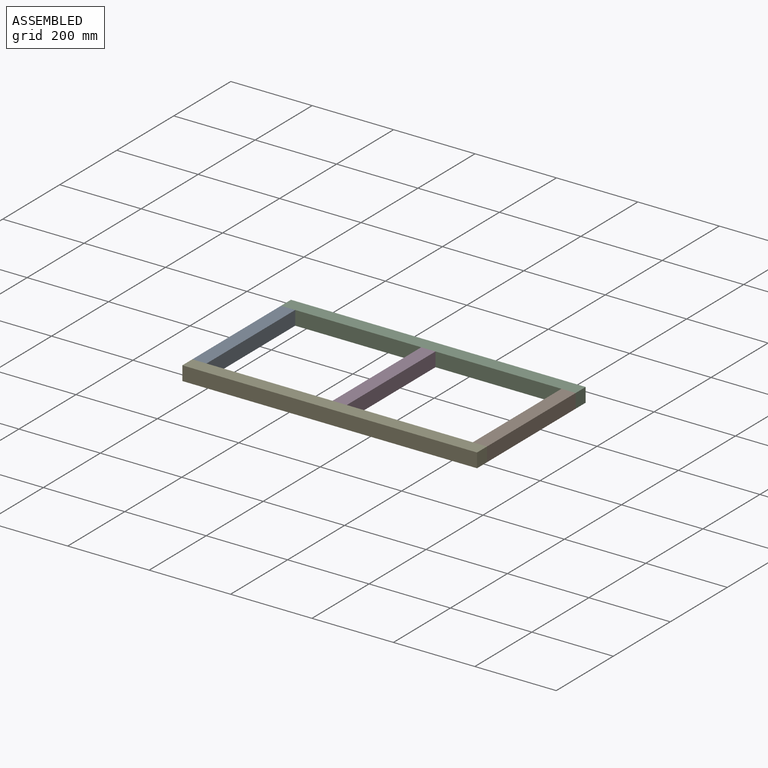
[diagram: assembled view]
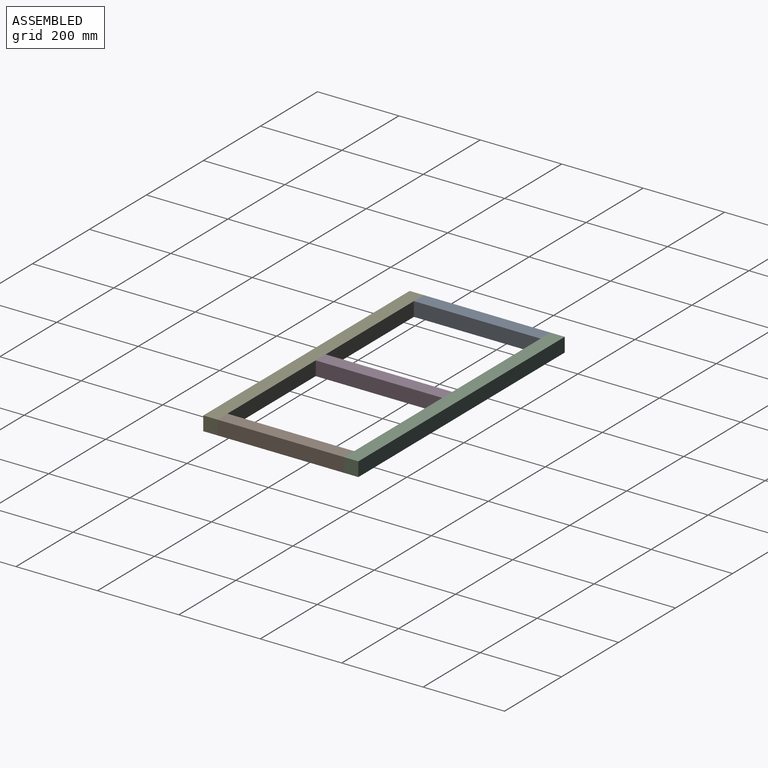
[diagram: assembled view, second angle]
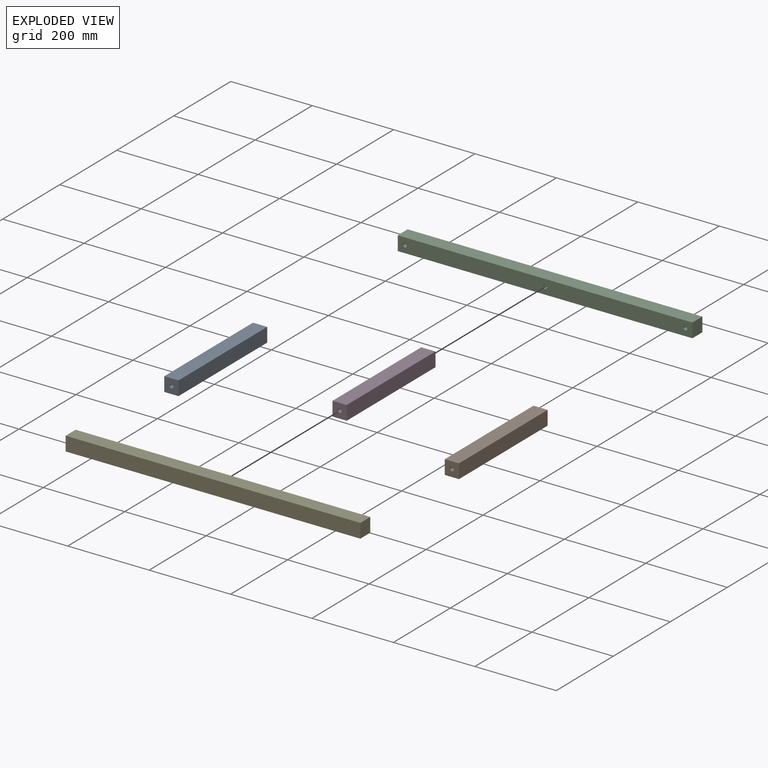
[diagram: exploded view]
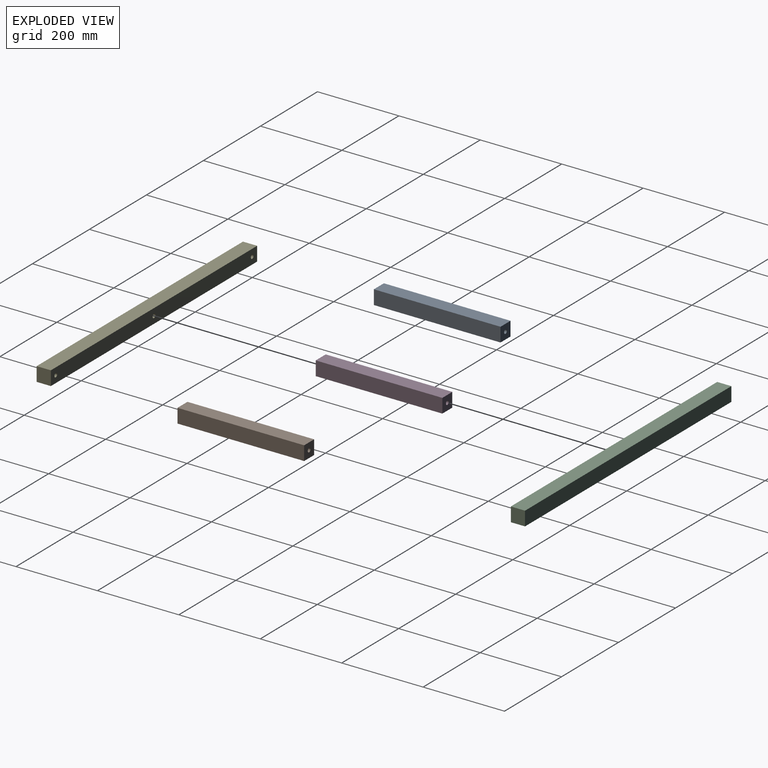
[diagram: exploded view, second angle]
ASSEMBLY  parts=5 mates=4
PART A: 10 faces, bbox 34.9x311.2x34.9 mm
  f0: plane 311.15x34.93mm, normal (-1,0,0), area 10866.9mm2, adj f1,f3,f4,f5
  f1: plane 34.93x34.93mm, normal (0,-1,0), area 1148.5mm2, adj f0,f2,f4,f5,f8
  f2: plane 311.15x34.93mm, normal (1,0,0), area 10866.9mm2, adj f1,f3,f4,f5
  f3: plane 34.93x34.93mm, normal (0,1,0), area 1148.5mm2, adj f0,f2,f4,f5,f6
  f4: plane 311.15x34.93mm, normal (0,0,1), area 10866.9mm2, adj f0,f1,f2,f3
  f5: plane 311.15x34.93mm, normal (0,0,-1), area 10866.9mm2, adj f0,f1,f2,f3
  f6: cylinder r=4.76mm len=9.53mm, axis (0,1,0), area 285mm2, adj f3,f7
  f7: plane 9.53x9.53mm, normal (0,1,0), area 71.3mm2, adj f6
  f8: cylinder r=4.76mm len=9.53mm, axis (0,-1,0), area 285mm2, adj f1,f9
  f9: plane 9.53x9.53mm, normal (0,-1,0), area 71.3mm2, adj f8
PART B: same geometry as A
PART C: 12 faces, bbox 723.9x34.9x34.9 mm
  f0: plane 723.9x34.93mm, normal (0,-1,0), area 25068.4mm2, adj f1,f2,f4,f5,f6,f8,f10
  f1: plane 34.93x34.93mm, normal (-1,0,0), area 1219.8mm2, adj f0,f3,f4,f5
  f2: plane 34.93x34.93mm, normal (1,0,0), area 1219.8mm2, adj f0,f3,f4,f5
  f3: plane 723.9x34.93mm, normal (0,1,0), area 25282.2mm2, adj f1,f2,f4,f5
  f4: plane 723.9x34.93mm, normal (0,0,1), area 25282.2mm2, adj f0,f1,f2,f3
  f5: plane 723.9x34.93mm, normal (0,0,-1), area 25282.2mm2, adj f0,f1,f2,f3
  f6: cylinder r=4.76mm len=9.53mm, axis (0,-1,0), area 285mm2, adj f0,f7
  f7: plane 9.53x9.53mm, normal (0,-1,0), area 71.3mm2, adj f6
  f8: cylinder r=4.76mm len=9.53mm, axis (0,-1,0), area 285mm2, adj f0,f9
  f9: plane 9.53x9.53mm, normal (0,-1,0), area 71.3mm2, adj f8
  f10: cylinder r=4.76mm len=9.53mm, axis (0,-1,0), area 285mm2, adj f0,f11
  f11: plane 9.53x9.53mm, normal (0,-1,0), area 71.3mm2, adj f10
PART D: 10 faces, bbox 34.9x311.2x34.9 mm
  f0: plane 311.15x34.93mm, normal (1,0,0), area 10866.9mm2, adj f1,f3,f4,f5
  f1: plane 34.93x34.93mm, normal (0,1,0), area 1148.5mm2, adj f0,f2,f4,f5,f8
  f2: plane 311.15x34.93mm, normal (-1,0,0), area 10866.9mm2, adj f1,f3,f4,f5
  f3: plane 34.93x34.93mm, normal (0,-1,0), area 1148.5mm2, adj f0,f2,f4,f5,f6
  f4: plane 311.15x34.93mm, normal (0,0,1), area 10866.9mm2, adj f0,f1,f2,f3
  f5: plane 311.15x34.93mm, normal (0,0,-1), area 10866.9mm2, adj f0,f1,f2,f3
  f6: cylinder r=4.76mm len=9.53mm, axis (0,-1,0), area 285mm2, adj f3,f7
  f7: plane 9.53x9.53mm, normal (0,-1,0), area 71.3mm2, adj f6
  f8: cylinder r=4.76mm len=9.53mm, axis (0,1,0), area 285mm2, adj f1,f9
  f9: plane 9.53x9.53mm, normal (0,1,0), area 71.3mm2, adj f8
PART E: same geometry as C
PLACE A rot(axis=(0,0,1),180deg) t=(-646.47,-445.87,117.97)mm
PLACE B t=(77.43,-64.87,117.97)mm
PLACE C t=(77.43,-64.87,117.97)mm fixed
PLACE D t=(77.43,-64.87,117.97)mm
PLACE E rot(axis=(0,0,1),180deg) t=(-646.47,-445.87,117.97)mm
MATE fastened D.f1 <-> C.f0  axis (0,1,0) through (-284.52,-99.79,117.97)mm
MATE fastened D.f3 <-> E.f0  axis (0,-1,0) through (-284.52,-410.94,117.97)mm
MATE fastened A.f6 <-> C.f8  axis (0,1,0) through (-629.01,-99.79,135.44)mm
MATE fastened B.f6 <-> C.f10  axis (0,1,0) through (59.97,-99.79,135.44)mm
